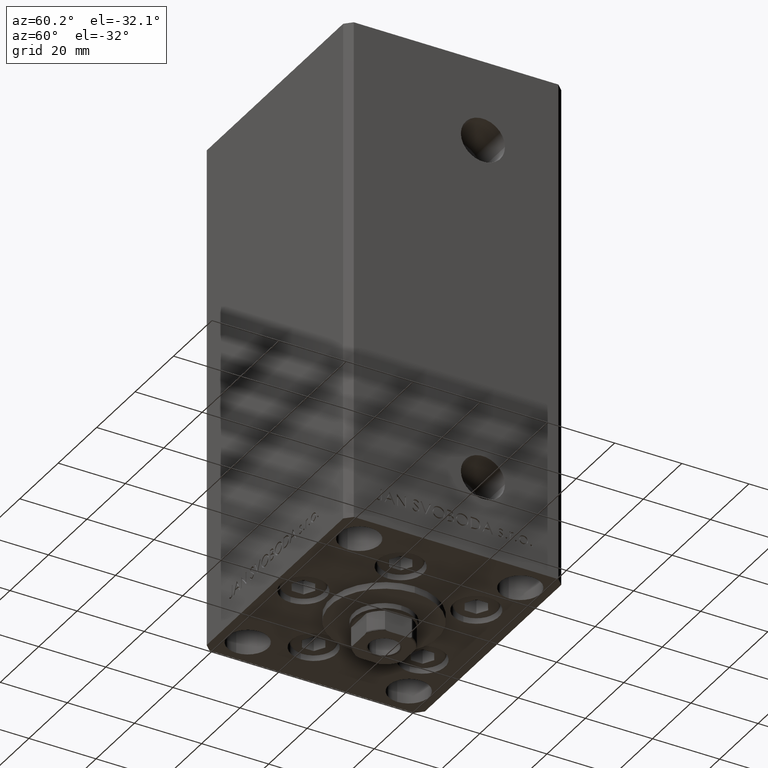
[diagram: clean part render]
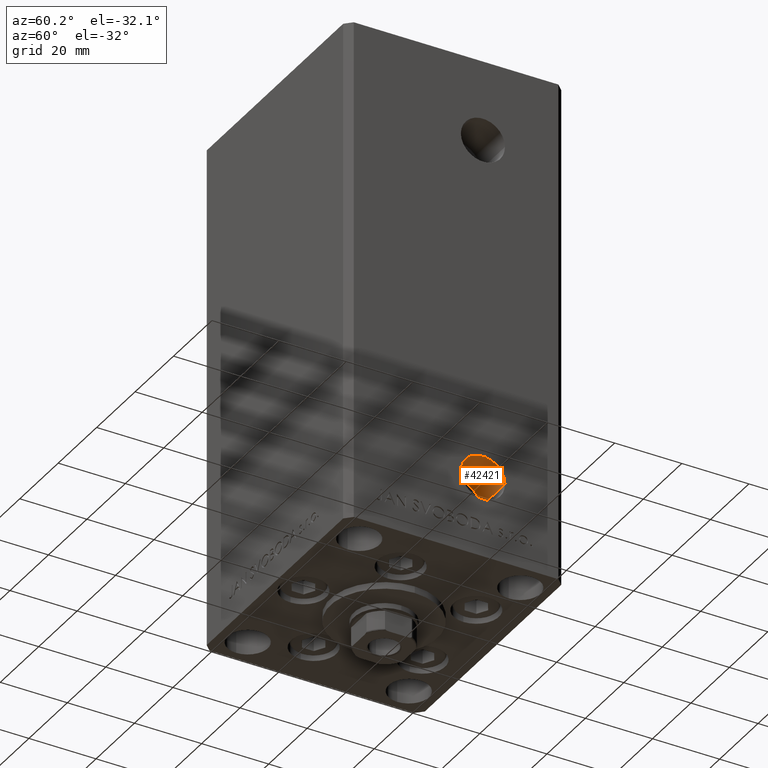
[diagram: same view with one face highlighted and labeled with its STEP entity id]
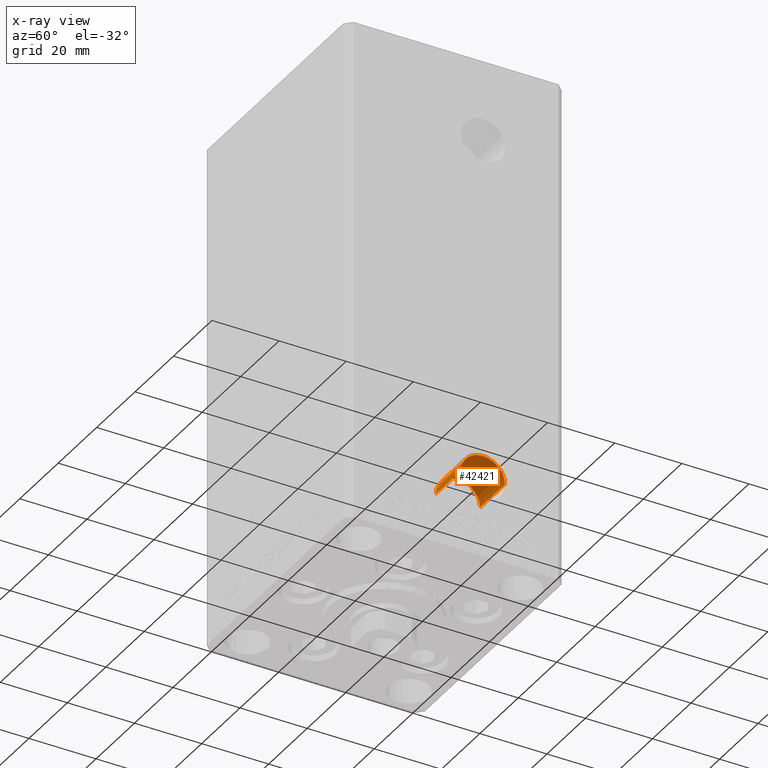
[diagram: x-ray of the same camera — body ghosted, the highlighted face saturated]
A machine part, auxiliary view. The second image highlights one B-rep face of the part: STEP entity #42421.
The next image is the same camera in x-ray: the body ghosted, the highlighted face saturated — about 0% of this face is hidden behind the body in this view.
In plain terms, the highlighted cylindrical surface (edge-blend (fillet) strip) has radius 6.58 mm, axis along (1, -0, 0).
Its self-contained STEP definition (entity closure, byte-faithful):
#1401 = CARTESIAN_POINT ( 'NONE',  ( 24.50000000000000000, 14.58000000000000007, 8.999999999999994671 ) ) ;
#1661 = CARTESIAN_POINT ( 'NONE',  ( 37.50000000000000000, 7.999999999999991118, 8.999999999999994671 ) ) ;
#2481 = EDGE_LOOP ( 'NONE', ( #13191, #41770, #47099, #6813 ) ) ;
#3049 = EDGE_CURVE ( 'NONE', #30137, #29578, #40277, .T. ) ;
#6130 = DIRECTION ( 'NONE',  ( 1.000000000000000000, -2.275047181608927644E-16, 0.000000000000000000 ) ) ;
#6813 = ORIENTED_EDGE ( 'NONE', *, *, #23586, .T. ) ;
#7337 = DIRECTION ( 'NONE',  ( 0.000000000000000000, 1.000000000000000000, 0.000000000000000000 ) ) ;
#7576 = DIRECTION ( 'NONE',  ( 1.000000000000000000, -2.275047181608927644E-16, -0.000000000000000000 ) ) ;
#8412 = VERTEX_POINT ( 'NONE', #13799 ) ;
#10726 = EDGE_CURVE ( 'NONE', #29578, #8412, #22747, .T. ) ;
#11051 = CARTESIAN_POINT ( 'NONE',  ( 24.50000000000000000, 1.419999999999989049, 8.999999999999994671 ) ) ;
#12373 = LINE ( 'NONE', #1401, #40360 ) ;
#13191 = ORIENTED_EDGE ( 'NONE', *, *, #10726, .F. ) ;
#13799 = CARTESIAN_POINT ( 'NONE',  ( 37.50000000000000000, 1.419999999999985496, 8.999999999999994671 ) ) ;
#17175 = VERTEX_POINT ( 'NONE', #27449 ) ;
#17835 = DIRECTION ( 'NONE',  ( 1.000000000000000000, -2.275047181608927644E-16, 0.000000000000000000 ) ) ;
#19249 = CIRCLE ( 'NONE', #45513, 6.580000000000006288 ) ;
#20844 = DIRECTION ( 'NONE',  ( 0.000000000000000000, 1.000000000000000000, 0.000000000000000000 ) ) ;
#21566 = CARTESIAN_POINT ( 'NONE',  ( 24.50000000000000000, 1.419999999999989049, 8.999999999999994671 ) ) ;
#22747 = LINE ( 'NONE', #11051, #43588 ) ;
#23586 = EDGE_CURVE ( 'NONE', #17175, #8412, #19249, .T. ) ;
#27449 = CARTESIAN_POINT ( 'NONE',  ( 37.50000000000000000, 14.57999999999999829, 8.999999999999994671 ) ) ;
#28371 = AXIS2_PLACEMENT_3D ( 'NONE', #33520, #17835, #30035 ) ;
#29578 = VERTEX_POINT ( 'NONE', #21566 ) ;
#30035 = DIRECTION ( 'NONE',  ( 0.000000000000000000, 1.000000000000000000, 0.000000000000000000 ) ) ;
#30137 = VERTEX_POINT ( 'NONE', #49032 ) ;
#33520 = CARTESIAN_POINT ( 'NONE',  ( 24.50000000000000000, 7.999999999999994671, 8.999999999999994671 ) ) ;
#35074 = EDGE_CURVE ( 'NONE', #30137, #17175, #12373, .T. ) ;
#37485 = CARTESIAN_POINT ( 'NONE',  ( 24.50000000000000000, 7.999999999999994671, 8.999999999999994671 ) ) ;
#40277 = CIRCLE ( 'NONE', #28371, 6.580000000000006288 ) ;
#40360 = VECTOR ( 'NONE', #42761, 1000.000000000000000 ) ;
#41770 = ORIENTED_EDGE ( 'NONE', *, *, #3049, .F. ) ;
#42421 = ADVANCED_FACE ( 'NONE', ( #44728 ), #44967, .F. ) ;
#42761 = DIRECTION ( 'NONE',  ( 1.000000000000000000, -2.275047181608927644E-16, -0.000000000000000000 ) ) ;
#43588 = VECTOR ( 'NONE', #45431, 1000.000000000000000 ) ;
#44483 = AXIS2_PLACEMENT_3D ( 'NONE', #37485, #7576, #7337 ) ;
#44728 = FACE_OUTER_BOUND ( 'NONE', #2481, .T. ) ;
#44967 = CYLINDRICAL_SURFACE ( 'NONE', #44483, 6.580000000000006288 ) ;
#45431 = DIRECTION ( 'NONE',  ( 1.000000000000000000, -2.275047181608927644E-16, -0.000000000000000000 ) ) ;
#45513 = AXIS2_PLACEMENT_3D ( 'NONE', #1661, #6130, #20844 ) ;
#47099 = ORIENTED_EDGE ( 'NONE', *, *, #35074, .T. ) ;
#49032 = CARTESIAN_POINT ( 'NONE',  ( 24.50000000000000000, 14.58000000000000007, 8.999999999999994671 ) ) ;